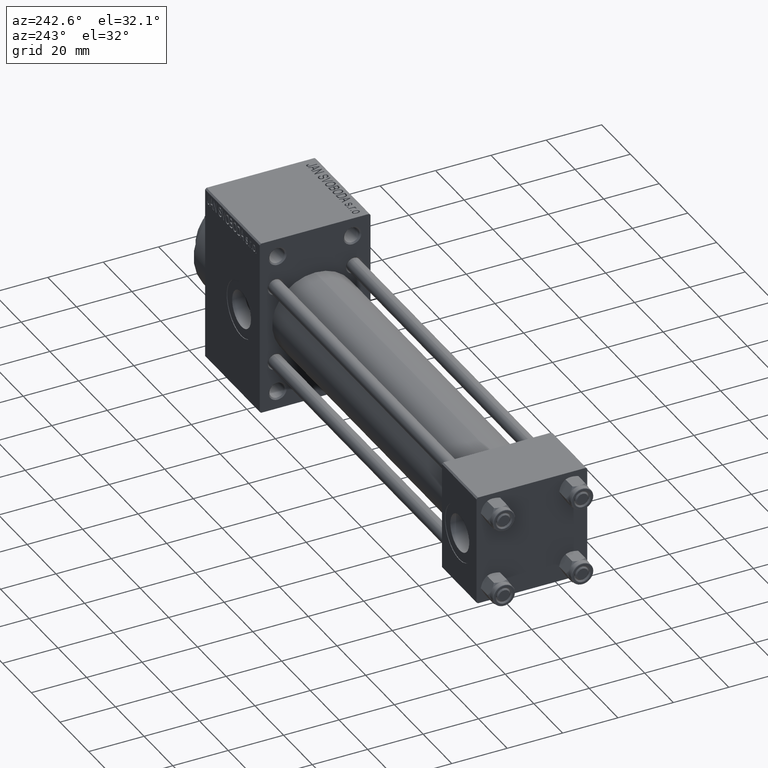
[diagram: clean part render]
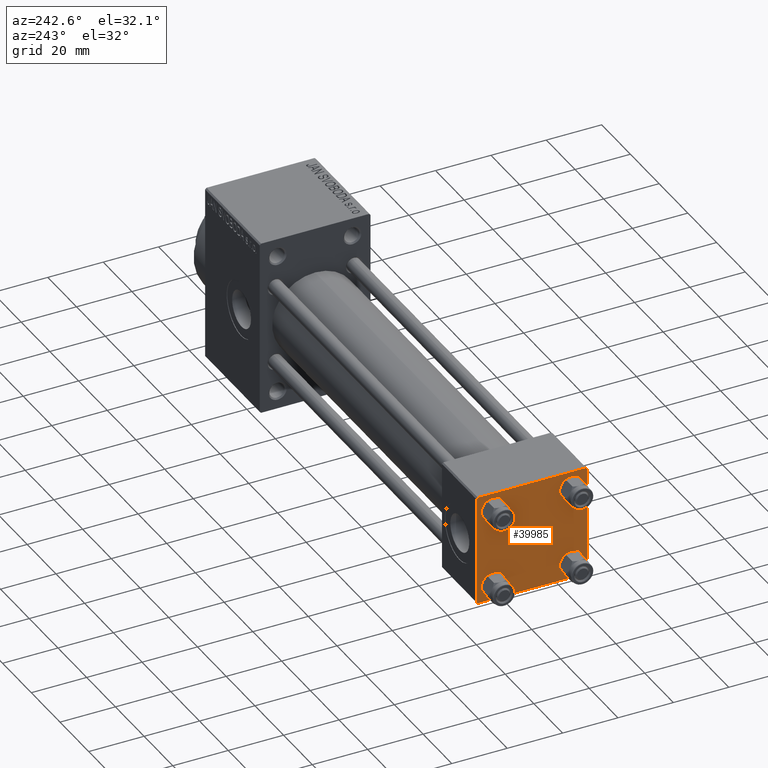
[diagram: same view with one face highlighted and labeled with its STEP entity id]
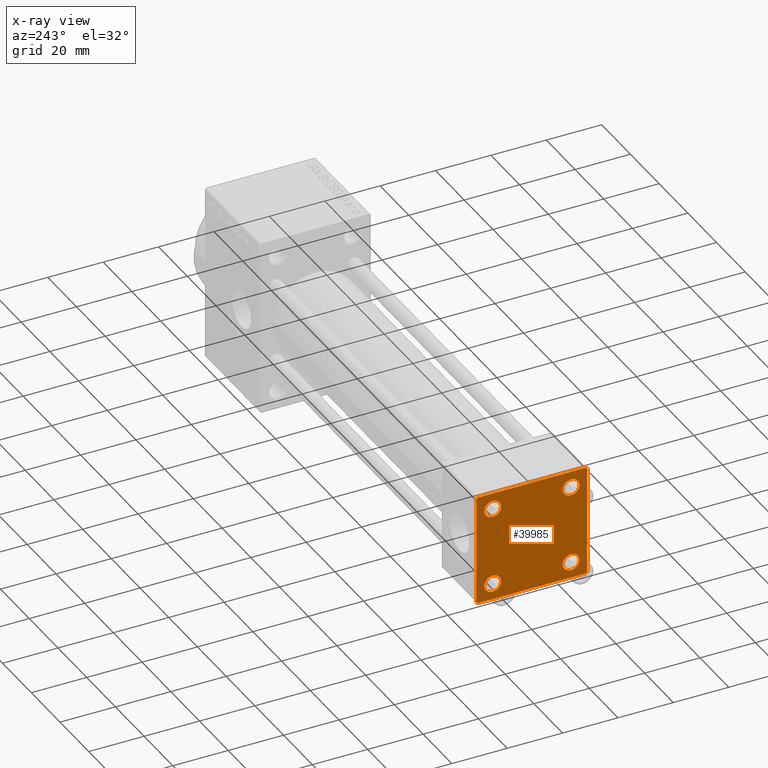
[diagram: x-ray of the same camera — body ghosted, the highlighted face saturated]
A machine part, auxiliary view. The second image highlights one B-rep face of the part: STEP entity #39985.
The next image is the same camera in x-ray: the body ghosted, the highlighted face saturated — about 0% of this face is hidden behind the body in this view.
In plain terms, the highlighted planar face has unit normal (-1, 0, 0).
Its self-contained STEP definition (entity closure, byte-faithful):
#25 = LINE ( 'NONE', #39992, #47079 ) ;
#163 = DIRECTION ( 'NONE',  ( -0.000000000000000000, -0.7071067811865524577, -0.7071067811865426878 ) ) ;
#166 = CIRCLE ( 'NONE', #43464, 2.999999999999983569 ) ;
#1438 = DIRECTION ( 'NONE',  ( 0.000000000000000000, 0.000000000000000000, 1.000000000000000000 ) ) ;
#1482 = EDGE_LOOP ( 'NONE', ( #10931, #27840 ) ) ;
#1696 = CARTESIAN_POINT ( 'NONE',  ( 0.000000000000000000, 19.50000000000000711, -20.00000000000000711 ) ) ;
#2072 = DIRECTION ( 'NONE',  ( 0.000000000000000000, -1.000000000000000000, 1.734723475976807094E-16 ) ) ;
#2206 = LINE ( 'NONE', #31215, #2241 ) ;
#2241 = VECTOR ( 'NONE', #9334, 1000.000000000000000 ) ;
#2628 = CIRCLE ( 'NONE', #16297, 2.999999999999983569 ) ;
#2820 = ORIENTED_EDGE ( 'NONE', *, *, #14917, .T. ) ;
#2828 = LINE ( 'NONE', #28960, #41264 ) ;
#3055 = CARTESIAN_POINT ( 'NONE',  ( 0.000000000000000000, -20.00000000000000000, -19.49999999999999645 ) ) ;
#3888 = DIRECTION ( 'NONE',  ( -1.000000000000000000, 0.000000000000000000, -0.000000000000000000 ) ) ;
#4491 = DIRECTION ( 'NONE',  ( 0.000000000000000000, 0.000000000000000000, 1.000000000000000000 ) ) ;
#4513 = VERTEX_POINT ( 'NONE', #36394 ) ;
#4632 = EDGE_LOOP ( 'NONE', ( #43454, #34179, #11591, #9731, #18896, #7131, #6691, #47042 ) ) ;
#4745 = EDGE_CURVE ( 'NONE', #4513, #29154, #2828, .T. ) ;
#5571 = CIRCLE ( 'NONE', #19143, 2.999999999999983569 ) ;
#5833 = EDGE_CURVE ( 'NONE', #34052, #28832, #166, .T. ) ;
#5893 = EDGE_CURVE ( 'NONE', #16902, #46147, #29027, .T. ) ;
#6080 = EDGE_CURVE ( 'NONE', #28832, #34052, #5571, .T. ) ;
#6175 = LINE ( 'NONE', #20684, #14755 ) ;
#6619 = DIRECTION ( 'NONE',  ( 0.000000000000000000, 0.000000000000000000, 1.000000000000000000 ) ) ;
#6691 = ORIENTED_EDGE ( 'NONE', *, *, #26338, .F. ) ;
#6850 = CARTESIAN_POINT ( 'NONE',  ( 0.000000000000000000, -14.14999999999999503, 14.15000000000000391 ) ) ;
#7069 = CARTESIAN_POINT ( 'NONE',  ( -0.000000000000000000, 19.74999999999986855, -19.75000000000014211 ) ) ;
#7131 = ORIENTED_EDGE ( 'NONE', *, *, #28637, .T. ) ;
#7548 = CARTESIAN_POINT ( 'NONE',  ( 0.000000000000000000, -19.49999999999999289, 19.99999999999998934 ) ) ;
#7802 = ORIENTED_EDGE ( 'NONE', *, *, #5893, .T. ) ;
#7915 = PLANE ( 'NONE',  #33544 ) ;
#8080 = CARTESIAN_POINT ( 'NONE',  ( 0.000000000000000000, -14.14999999999999503, -11.15000000000000036 ) ) ;
#8998 = EDGE_CURVE ( 'NONE', #33061, #33494, #19434, .T. ) ;
#9268 = DIRECTION ( 'NONE',  ( 0.000000000000000000, -0.7071067811865401342, 0.7071067811865549002 ) ) ;
#9285 = VERTEX_POINT ( 'NONE', #39320 ) ;
#9334 = DIRECTION ( 'NONE',  ( 0.000000000000000000, -1.000000000000000000, -2.602085213965210149E-16 ) ) ;
#9384 = DIRECTION ( 'NONE',  ( 1.000000000000000000, 0.000000000000000000, 0.000000000000000000 ) ) ;
#9731 = ORIENTED_EDGE ( 'NONE', *, *, #44599, .T. ) ;
#10108 = ORIENTED_EDGE ( 'NONE', *, *, #5833, .T. ) ;
#10170 = VERTEX_POINT ( 'NONE', #7548 ) ;
#10187 = DIRECTION ( 'NONE',  ( 1.000000000000000000, 0.000000000000000000, 0.000000000000000000 ) ) ;
#10543 = CARTESIAN_POINT ( 'NONE',  ( 0.000000000000000000, 0.000000000000000000, 0.000000000000000000 ) ) ;
#10927 = EDGE_CURVE ( 'NONE', #46147, #16902, #2628, .T. ) ;
#10931 = ORIENTED_EDGE ( 'NONE', *, *, #42364, .T. ) ;
#11591 = ORIENTED_EDGE ( 'NONE', *, *, #8998, .T. ) ;
#11871 = ORIENTED_EDGE ( 'NONE', *, *, #6080, .T. ) ;
#12535 = DIRECTION ( 'NONE',  ( 0.000000000000000000, 0.000000000000000000, 1.000000000000000000 ) ) ;
#12559 = DIRECTION ( 'NONE',  ( 0.000000000000000000, 0.000000000000000000, -1.000000000000000000 ) ) ;
#13565 = EDGE_CURVE ( 'NONE', #29154, #15045, #38000, .T. ) ;
#14642 = EDGE_CURVE ( 'NONE', #15818, #32375, #26245, .T. ) ;
#14755 = VECTOR ( 'NONE', #9268, 1000.000000000000000 ) ;
#14917 = EDGE_CURVE ( 'NONE', #32375, #15818, #29333, .T. ) ;
#15045 = VERTEX_POINT ( 'NONE', #33850 ) ;
#15121 = ORIENTED_EDGE ( 'NONE', *, *, #14642, .T. ) ;
#15818 = VERTEX_POINT ( 'NONE', #32226 ) ;
#16297 = AXIS2_PLACEMENT_3D ( 'NONE', #6850, #17102, #21133 ) ;
#16387 = CARTESIAN_POINT ( 'NONE',  ( 0.000000000000000000, -19.50000000000000711, -20.00000000000000000 ) ) ;
#16750 = CARTESIAN_POINT ( 'NONE',  ( 0.000000000000000000, 14.14999999999999858, -14.15000000000000036 ) ) ;
#16770 = DIRECTION ( 'NONE',  ( 0.000000000000000000, 0.000000000000000000, 1.000000000000000000 ) ) ;
#16902 = VERTEX_POINT ( 'NONE', #32643 ) ;
#17102 = DIRECTION ( 'NONE',  ( 1.000000000000000000, 0.000000000000000000, 0.000000000000000000 ) ) ;
#17242 = CARTESIAN_POINT ( 'NONE',  ( 0.000000000000000000, 14.14999999999999858, 14.15000000000000036 ) ) ;
#17973 = DIRECTION ( 'NONE',  ( 1.000000000000000000, 0.000000000000000000, 0.000000000000000000 ) ) ;
#18390 = FACE_OUTER_BOUND ( 'NONE', #4632, .T. ) ;
#18896 = ORIENTED_EDGE ( 'NONE', *, *, #39645, .F. ) ;
#19143 = AXIS2_PLACEMENT_3D ( 'NONE', #16750, #9384, #42218 ) ;
#19434 = LINE ( 'NONE', #20140, #34422 ) ;
#20140 = CARTESIAN_POINT ( 'NONE',  ( 0.000000000000000000, 20.00000000000000000, -20.00000000000000711 ) ) ;
#20202 = AXIS2_PLACEMENT_3D ( 'NONE', #17242, #45325, #16770 ) ;
#20430 = CARTESIAN_POINT ( 'NONE',  ( 0.000000000000000000, -14.14999999999999503, -14.15000000000000391 ) ) ;
#20640 = FACE_BOUND ( 'NONE', #43315, .T. ) ;
#20684 = CARTESIAN_POINT ( 'NONE',  ( 0.000000000000000000, -19.75000000000020961, -19.74999999999979394 ) ) ;
#21133 = DIRECTION ( 'NONE',  ( 0.000000000000000000, 0.000000000000000000, 1.000000000000000000 ) ) ;
#22197 = FACE_BOUND ( 'NONE', #32857, .T. ) ;
#23247 = ORIENTED_EDGE ( 'NONE', *, *, #10927, .T. ) ;
#23479 = CARTESIAN_POINT ( 'NONE',  ( 0.000000000000000000, 14.14999999999999858, -14.15000000000000036 ) ) ;
#24476 = EDGE_CURVE ( 'NONE', #15045, #33061, #36790, .T. ) ;
#25475 = CARTESIAN_POINT ( 'NONE',  ( 0.000000000000000000, -20.00000000000000355, 19.49999999999998224 ) ) ;
#25949 = VECTOR ( 'NONE', #31645, 1000.000000000000000 ) ;
#25992 = FACE_BOUND ( 'NONE', #42383, .T. ) ;
#26245 = CIRCLE ( 'NONE', #32317, 2.999999999999983569 ) ;
#26338 = EDGE_CURVE ( 'NONE', #4513, #10170, #2206, .T. ) ;
#27123 = CARTESIAN_POINT ( 'NONE',  ( 0.000000000000000000, -14.14999999999999503, -14.15000000000000391 ) ) ;
#27155 = CARTESIAN_POINT ( 'NONE',  ( 0.000000000000000000, 20.00000000000000000, 19.49999999999999289 ) ) ;
#27840 = ORIENTED_EDGE ( 'NONE', *, *, #47065, .T. ) ;
#27921 = CARTESIAN_POINT ( 'NONE',  ( 0.000000000000000000, 14.14999999999999858, -11.15000000000001812 ) ) ;
#28349 = DIRECTION ( 'NONE',  ( -0.000000000000000000, 0.7071067811865500152, 0.7071067811865451302 ) ) ;
#28637 = EDGE_CURVE ( 'NONE', #37827, #10170, #25, .T. ) ;
#28832 = VERTEX_POINT ( 'NONE', #27921 ) ;
#28960 = CARTESIAN_POINT ( 'NONE',  ( -0.000000000000000000, 19.75000000000013500, 19.74999999999986144 ) ) ;
#29027 = CIRCLE ( 'NONE', #46485, 2.999999999999983569 ) ;
#29154 = VERTEX_POINT ( 'NONE', #27155 ) ;
#29333 = CIRCLE ( 'NONE', #20202, 2.999999999999983569 ) ;
#30236 = VECTOR ( 'NONE', #163, 1000.000000000000000 ) ;
#30605 = DIRECTION ( 'NONE',  ( 1.000000000000000000, 0.000000000000000000, 0.000000000000000000 ) ) ;
#31215 = CARTESIAN_POINT ( 'NONE',  ( 0.000000000000000000, 20.00000000000000000, 20.00000000000000000 ) ) ;
#31645 = DIRECTION ( 'NONE',  ( 0.000000000000000000, 8.673617379884036705E-17, -1.000000000000000000 ) ) ;
#32226 = CARTESIAN_POINT ( 'NONE',  ( 0.000000000000000000, 14.14999999999999858, 11.15000000000001990 ) ) ;
#32246 = DIRECTION ( 'NONE',  ( 0.000000000000000000, 0.000000000000000000, 1.000000000000000000 ) ) ;
#32317 = AXIS2_PLACEMENT_3D ( 'NONE', #33965, #44462, #4491 ) ;
#32375 = VERTEX_POINT ( 'NONE', #43709 ) ;
#32643 = CARTESIAN_POINT ( 'NONE',  ( 0.000000000000000000, -14.14999999999999503, 17.14999999999998792 ) ) ;
#32857 = EDGE_LOOP ( 'NONE', ( #11871, #10108 ) ) ;
#32873 = CIRCLE ( 'NONE', #36684, 3.000000000000004441 ) ;
#33061 = VERTEX_POINT ( 'NONE', #1696 ) ;
#33494 = VERTEX_POINT ( 'NONE', #16387 ) ;
#33544 = AXIS2_PLACEMENT_3D ( 'NONE', #10543, #3888, #43138 ) ;
#33850 = CARTESIAN_POINT ( 'NONE',  ( 0.000000000000000000, 20.00000000000000000, -19.50000000000002132 ) ) ;
#33965 = CARTESIAN_POINT ( 'NONE',  ( 0.000000000000000000, 14.14999999999999858, 14.15000000000000036 ) ) ;
#34052 = VERTEX_POINT ( 'NONE', #40968 ) ;
#34179 = ORIENTED_EDGE ( 'NONE', *, *, #24476, .T. ) ;
#34422 = VECTOR ( 'NONE', #2072, 1000.000000000000000 ) ;
#34433 = CARTESIAN_POINT ( 'NONE',  ( 0.000000000000000000, 20.00000000000000000, 20.00000000000000000 ) ) ;
#35149 = FACE_BOUND ( 'NONE', #1482, .T. ) ;
#35441 = LINE ( 'NONE', #41699, #25949 ) ;
#35864 = DIRECTION ( 'NONE',  ( 0.000000000000000000, 0.7071067811865425767, -0.7071067811865525687 ) ) ;
#36394 = CARTESIAN_POINT ( 'NONE',  ( 0.000000000000000000, 19.50000000000000000, 20.00000000000000000 ) ) ;
#36684 = AXIS2_PLACEMENT_3D ( 'NONE', #27123, #37356, #1438 ) ;
#36790 = LINE ( 'NONE', #7069, #30236 ) ;
#37356 = DIRECTION ( 'NONE',  ( 1.000000000000000000, 0.000000000000000000, 0.000000000000000000 ) ) ;
#37827 = VERTEX_POINT ( 'NONE', #25475 ) ;
#38000 = LINE ( 'NONE', #34433, #42957 ) ;
#39320 = CARTESIAN_POINT ( 'NONE',  ( 0.000000000000000000, -14.14999999999999503, -17.15000000000000924 ) ) ;
#39391 = CARTESIAN_POINT ( 'NONE',  ( 0.000000000000000000, -14.14999999999999503, 14.15000000000000391 ) ) ;
#39645 = EDGE_CURVE ( 'NONE', #37827, #47024, #35441, .T. ) ;
#39985 = ADVANCED_FACE ( 'NONE', ( #20640, #35149, #22197, #25992, #18390 ), #7915, .T. ) ;
#39992 = CARTESIAN_POINT ( 'NONE',  ( -0.000000000000000000, -19.74999999999992539, 19.75000000000006395 ) ) ;
#40968 = CARTESIAN_POINT ( 'NONE',  ( 0.000000000000000000, 14.14999999999999858, -17.14999999999998437 ) ) ;
#41264 = VECTOR ( 'NONE', #35864, 999.9999999999998863 ) ;
#41699 = CARTESIAN_POINT ( 'NONE',  ( 0.000000000000000000, -20.00000000000000355, 19.99999999999998934 ) ) ;
#42169 = AXIS2_PLACEMENT_3D ( 'NONE', #20430, #10187, #6619 ) ;
#42218 = DIRECTION ( 'NONE',  ( 0.000000000000000000, 0.000000000000000000, 1.000000000000000000 ) ) ;
#42364 = EDGE_CURVE ( 'NONE', #42955, #9285, #32873, .T. ) ;
#42383 = EDGE_LOOP ( 'NONE', ( #2820, #15121 ) ) ;
#42955 = VERTEX_POINT ( 'NONE', #8080 ) ;
#42957 = VECTOR ( 'NONE', #12559, 1000.000000000000000 ) ;
#43138 = DIRECTION ( 'NONE',  ( -0.000000000000000000, 0.000000000000000000, 1.000000000000000000 ) ) ;
#43315 = EDGE_LOOP ( 'NONE', ( #7802, #23247 ) ) ;
#43454 = ORIENTED_EDGE ( 'NONE', *, *, #13565, .T. ) ;
#43464 = AXIS2_PLACEMENT_3D ( 'NONE', #23479, #30605, #12535 ) ;
#43709 = CARTESIAN_POINT ( 'NONE',  ( 0.000000000000000000, 14.14999999999999858, 17.14999999999998437 ) ) ;
#44462 = DIRECTION ( 'NONE',  ( 1.000000000000000000, 0.000000000000000000, 0.000000000000000000 ) ) ;
#44588 = CARTESIAN_POINT ( 'NONE',  ( 0.000000000000000000, -14.14999999999999503, 11.15000000000002345 ) ) ;
#44599 = EDGE_CURVE ( 'NONE', #33494, #47024, #6175, .T. ) ;
#45325 = DIRECTION ( 'NONE',  ( 1.000000000000000000, 0.000000000000000000, 0.000000000000000000 ) ) ;
#46147 = VERTEX_POINT ( 'NONE', #44588 ) ;
#46485 = AXIS2_PLACEMENT_3D ( 'NONE', #39391, #17973, #32246 ) ;
#46703 = CIRCLE ( 'NONE', #42169, 3.000000000000004441 ) ;
#47024 = VERTEX_POINT ( 'NONE', #3055 ) ;
#47042 = ORIENTED_EDGE ( 'NONE', *, *, #4745, .T. ) ;
#47065 = EDGE_CURVE ( 'NONE', #9285, #42955, #46703, .T. ) ;
#47079 = VECTOR ( 'NONE', #28349, 1000.000000000000114 ) ;